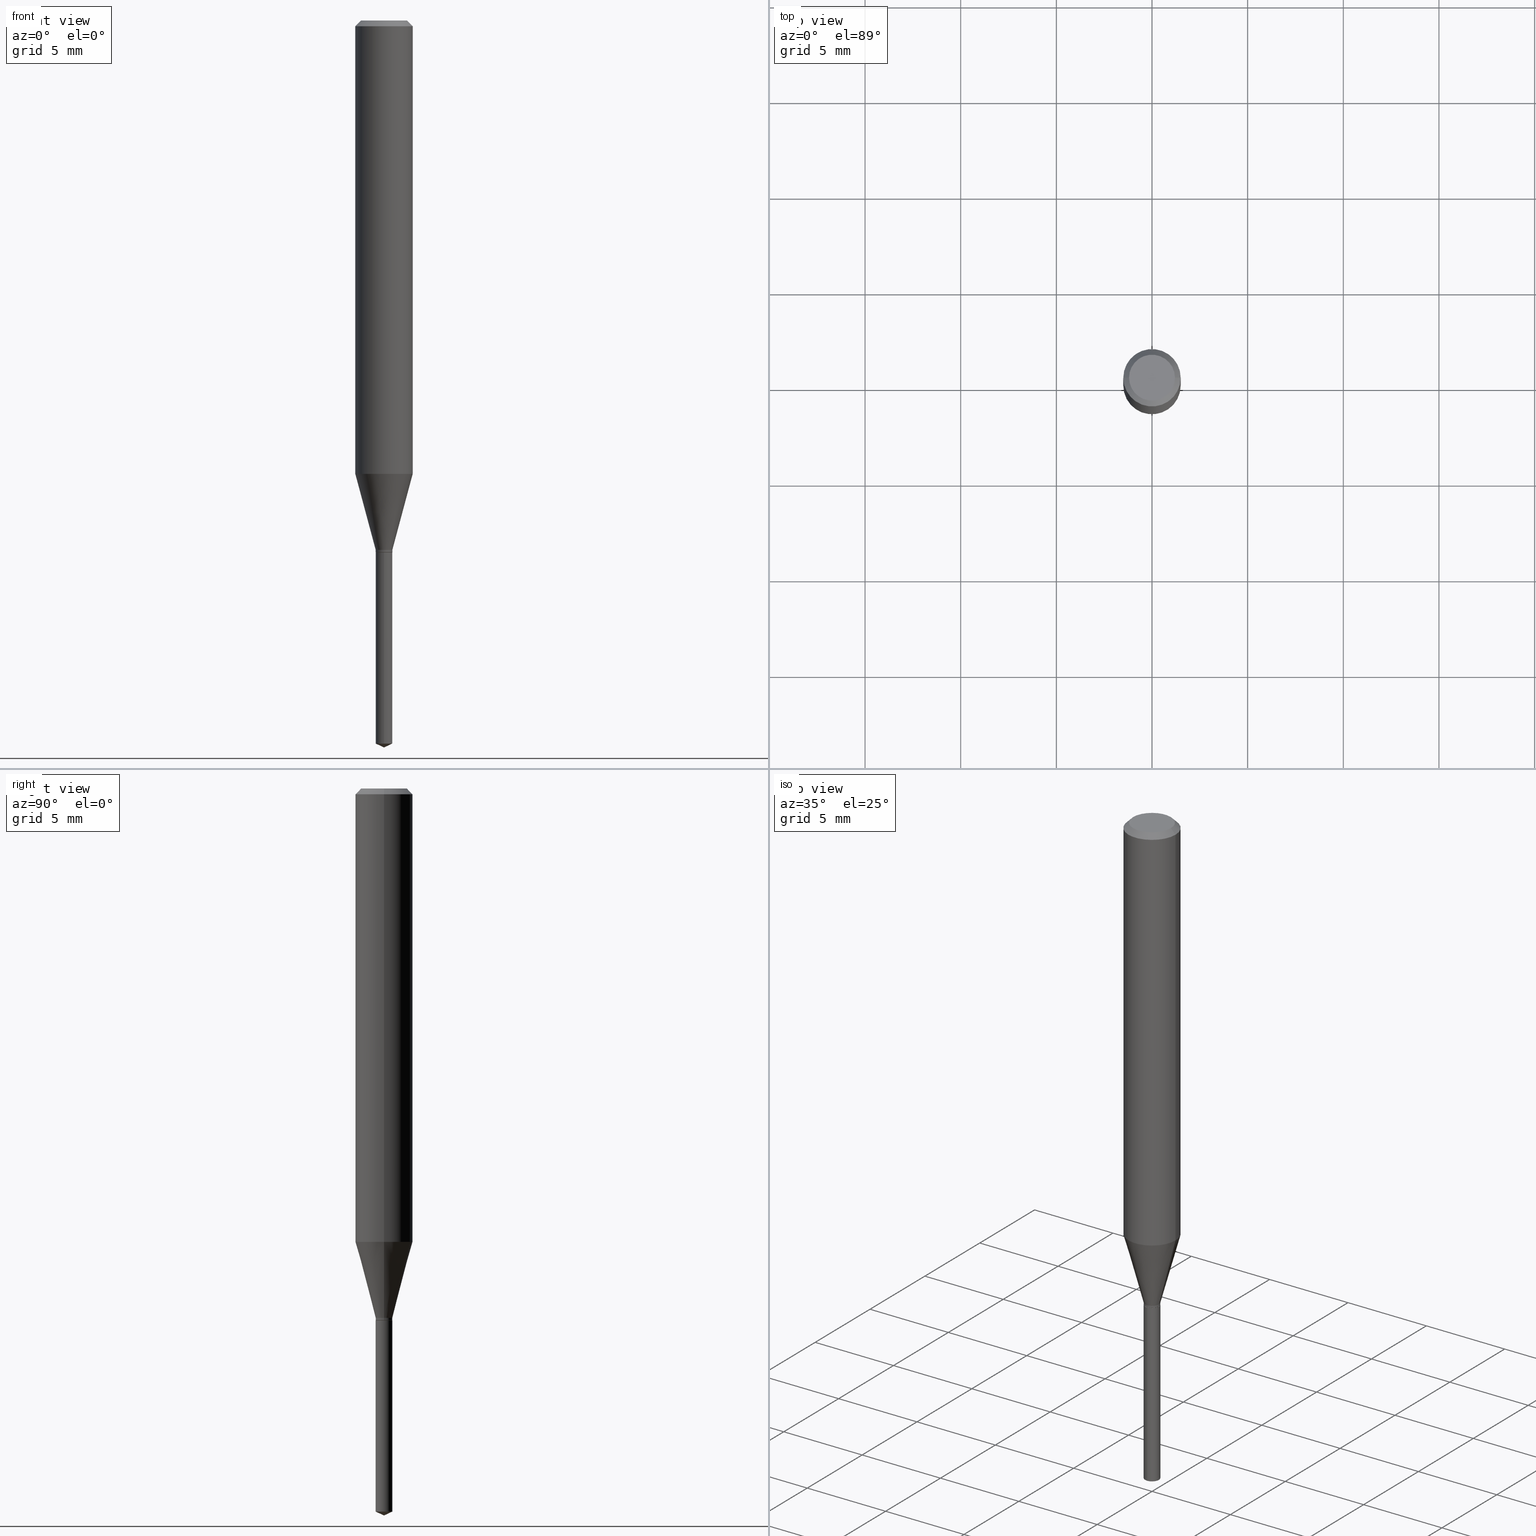
[diagram: canonical four-view strip — front | top / right | iso, engineering-drawing reading convention]
A machine part, canonical four-view strip (front | top / right | iso — engineering-drawing reading convention). The complete STEP part file that produces these views, byte-faithful:
ISO-10303-21;
HEADER;
FILE_DESCRIPTION (( 'STEP AP203' ),
    '1' );
FILE_NAME ('07809.STEP',
    '2024-04-24T03:30:47',
    ( '' ),
    ( '' ),
    'SwSTEP 2.0',
    'SolidWorks 2023',
    '' );
FILE_SCHEMA (( 'CONFIG_CONTROL_DESIGN' ));
ENDSEC;

DATA;
#1 = CARTESIAN_POINT ( 'NONE',  ( 2.676565608369631794E-29, -3.821426325363822773E-15, -1.094499999999999806 ) ) ;
#2 = AXIS2_PLACEMENT_3D ( 'NONE', #216, #62, #364 ) ;
#3 = CALENDAR_DATE ( 2024, 23, 4 ) ;
#4 = DIRECTION ( 'NONE',  ( 1.000000000000000000, -6.982962677686266711E-15, 0.000000000000000000 ) ) ;
#5 = COORDINATED_UNIVERSAL_TIME_OFFSET ( 5, 0, .BEHIND. ) ;
#6 = ORIENTED_EDGE ( 'NONE', *, *, #64, .T. ) ;
#7 = PERSON_AND_ORGANIZATION ( #191, #145 ) ;
#8 = CIRCLE ( 'NONE', #239, 0.04724000000000000421 ) ;
#9 = DIRECTION ( 'NONE',  ( -2.445468806185136597E-29, 3.491481338843145583E-15, 1.000000000000000000 ) ) ;
#10 = VECTOR ( 'NONE', #247, 39.37007874015748143 ) ;
#11 = VERTEX_POINT ( 'NONE', #442 ) ;
#12 = CARTESIAN_POINT ( 'NONE',  ( 0.000000000000000000, 0.000000000000000000, 0.000000000000000000 ) ) ;
#13 = EDGE_CURVE ( 'NONE', #225, #439, #404, .T. ) ;
#14 = ORIENTED_EDGE ( 'NONE', *, *, #52, .F. ) ;
#15 = SHAPE_DEFINITION_REPRESENTATION ( #240, #43 ) ;
#16 = DIRECTION ( 'NONE',  ( 1.000000000000000000, -6.982962677686266711E-15, 4.876176775795935793E-29 ) ) ;
#17 = EDGE_LOOP ( 'NONE', ( #285, #282, #465, #14 ) ) ;
#18 = CARTESIAN_POINT ( 'NONE',  ( 3.639109590007979236E-29, -5.195682445244359530E-15, -1.488102823662641683 ) ) ;
#19 = AXIS2_PLACEMENT_3D ( 'NONE', #329, #406, #371 ) ;
#20 = ORIENTED_EDGE ( 'NONE', *, *, #35, .F. ) ;
#21 = ORIENTED_EDGE ( 'NONE', *, *, #224, .T. ) ;
#22 = ADVANCED_FACE ( 'NONE', ( #375 ), #418, .T. ) ;
#23 = CARTESIAN_POINT ( 'NONE',  ( 1.218580791828936073E-16, 0.01714999999999617525, -1.094499999999999806 ) ) ;
#24 = VECTOR ( 'NONE', #127, 39.37007874015747433 ) ;
#25 = EDGE_CURVE ( 'NONE', #46, #85, #487, .T. ) ;
#26 = DIRECTION ( 'NONE',  ( -2.445468806185136597E-29, 3.491481338843145583E-15, 1.000000000000000000 ) ) ;
#27 = CARTESIAN_POINT ( 'NONE',  ( -9.261968845786000133E-28, 1.322362114038720264E-13, 37.87397874015748300 ) ) ;
#28 = VECTOR ( 'NONE', #197, 39.37007874015748143 ) ;
#29 = AXIS2_PLACEMENT_3D ( 'NONE', #97, #403, #60 ) ;
#30 = CARTESIAN_POINT ( 'NONE',  ( 2.676565608369631794E-29, -3.821426325363822773E-15, -1.094499999999999806 ) ) ;
#31 = DIRECTION ( 'NONE',  ( 2.438088387897960049E-29, -3.491481338843145188E-15, -1.000000000000000000 ) ) ;
#32 = CARTESIAN_POINT ( 'NONE',  ( 2.676565608369631794E-29, -3.821426325363822773E-15, -1.094499999999999806 ) ) ;
#33 = DIRECTION ( 'NONE',  ( -2.445468806185136597E-29, 3.491481338843145583E-15, 1.000000000000000000 ) ) ;
#34 = PERSON_AND_ORGANIZATION ( #191, #145 ) ;
#35 = EDGE_CURVE ( 'NONE', #121, #11, #208, .T. ) ;
#36 = FACE_OUTER_BOUND ( 'NONE', #262, .T. ) ;
#37 = CARTESIAN_POINT ( 'NONE',  ( 2.664093717458087237E-29, -3.803619770535721859E-15, -1.089399999999999924 ) ) ;
#38 = ORIENTED_EDGE ( 'NONE', *, *, #35, .T. ) ;
#39 = DATE_TIME_ROLE ( 'classification_date' ) ;
#40 = CARTESIAN_POINT ( 'NONE',  ( 0.01715000000000000205, -3.939438394616720359E-15, -1.093999999999999861 ) ) ;
#41 = COORDINATED_UNIVERSAL_TIME_OFFSET ( 5, 0, .BEHIND. ) ;
#42 = AXIS2_PLACEMENT_3D ( 'NONE', #30, #288, #134 ) ;
#43 = ADVANCED_BREP_SHAPE_REPRESENTATION ( '07809', ( #71, #419, #139 ), #175 ) ;
#44 = DIRECTION ( 'NONE',  ( 1.000000000000000000, -6.982962677686279332E-15, 0.000000000000000000 ) ) ;
#45 = AXIS2_PLACEMENT_3D ( 'NONE', #292, #374, #448 ) ;
#46 = VERTEX_POINT ( 'NONE', #412 ) ;
#47 = DATE_AND_TIME ( #182, #195 ) ;
#48 = ORIENTED_EDGE ( 'NONE', *, *, #120, .T. ) ;
#49 = DIRECTION ( 'NONE',  ( -2.445470214571802116E-29, 3.491479321953280158E-15, 1.000000000000000000 ) ) ;
#50 = ORIENTED_EDGE ( 'NONE', *, *, #172, .T. ) ;
#51 = CARTESIAN_POINT ( 'NONE',  ( 0.01664999999999999813, -3.937692653947298855E-15, -1.094499999999999806 ) ) ;
#52 = EDGE_CURVE ( 'NONE', #281, #231, #117, .T. ) ;
#53 = ORIENTED_EDGE ( 'NONE', *, *, #238, .T. ) ;
#54 = CARTESIAN_POINT ( 'NONE',  ( 2.676565608369631794E-29, -3.821426325363822773E-15, -1.094499999999999806 ) ) ;
#55 = EDGE_LOOP ( 'NONE', ( #115, #340, #88, #276 ) ) ;
#56 = FACE_OUTER_BOUND ( 'NONE', #192, .T. ) ;
#57 = ADVANCED_FACE ( 'NONE', ( #119 ), #444, .T. ) ;
#58 = CONICAL_SURFACE ( 'NONE', #303, 0.05904999999999999832, 0.7853981633974452814 ) ;
#59 = AXIS2_PLACEMENT_3D ( 'NONE', #451, #141, #101 ) ;
#60 = DIRECTION ( 'NONE',  ( 1.000000000000000000, -6.982962677686266711E-15, 4.876176775795935793E-29 ) ) ;
#61 = DIRECTION ( 'NONE',  ( -1.000000000000000000, 6.982962677686266711E-15, 0.000000000000000000 ) ) ;
#62 = DIRECTION ( 'NONE',  ( -2.445468806185136597E-29, 3.491481338843145583E-15, 1.000000000000000000 ) ) ;
#63 = DIMENSIONAL_EXPONENTS ( 1.000000000000000000, 0.000000000000000000, 0.000000000000000000, 0.000000000000000000, 0.000000000000000000, 0.000000000000000000, 0.000000000000000000 ) ;
#64 = EDGE_CURVE ( 'NONE', #357, #243, #136, .T. ) ;
#65 = AXIS2_PLACEMENT_3D ( 'NONE', #331, #385, #4 ) ;
#66 = AXIS2_PLACEMENT_3D ( 'NONE', #37, #263, #228 ) ;
#67 = LINE ( 'NONE', #362, #490 ) ;
#68 = DIRECTION ( 'NONE',  ( -2.445468806185136597E-29, 3.491481338843145583E-15, 1.000000000000000000 ) ) ;
#69 = ADVANCED_FACE ( 'NONE', ( #484 ), #328, .F. ) ;
#70 = PERSON_AND_ORGANIZATION ( #191, #145 ) ;
#71 = MANIFOLD_SOLID_BREP ( 'Body-Move/Copy2[1]', #236 ) ;
#72 = AXIS2_PLACEMENT_3D ( 'NONE', #74, #380, #223 ) ;
#73 = APPROVAL_DATE_TIME ( #341, #297 ) ;
#74 = CARTESIAN_POINT ( 'NONE',  ( 2.676565608369631794E-29, -3.821426325363822773E-15, -1.094499999999999806 ) ) ;
#75 = PERSON_AND_ORGANIZATION_ROLE ( 'creator' ) ;
#76 = CARTESIAN_POINT ( 'NONE',  ( -0.04724000000000000421, 3.504923541997677355E-16, -3.380025165670481712E-19 ) ) ;
#77 = ADVANCED_FACE ( 'NONE', ( #171 ), #296, .T. ) ;
#78 = EDGE_LOOP ( 'NONE', ( #350, #6, #245, #112 ) ) ;
#79 = COORDINATED_UNIVERSAL_TIME_OFFSET ( 5, 0, .BEHIND. ) ;
#80 = CYLINDRICAL_SURFACE ( 'NONE', #72, 0.01714999999999999858 ) ;
#81 = PRODUCT_RELATED_PRODUCT_CATEGORY ( 'detail', '', ( #156 ) ) ;
#82 = AXIS2_PLACEMENT_3D ( 'NONE', #280, #49, #346 ) ;
#83 = DIRECTION ( 'NONE',  ( -2.445468806185136597E-29, 3.491481338843145583E-15, 1.000000000000000000 ) ) ;
#84 = CARTESIAN_POINT ( 'NONE',  ( 0.01664999999999999813, -3.937692653947298855E-15, -1.094499999999999806 ) ) ;
#85 = VERTEX_POINT ( 'NONE', #372 ) ;
#86 = LINE ( 'NONE', #266, #279 ) ;
#87 = EDGE_LOOP ( 'NONE', ( #152, #284 ) ) ;
#88 = ORIENTED_EDGE ( 'NONE', *, *, #305, .T. ) ;
#89 = VECTOR ( 'NONE', #204, 39.37007874015748143 ) ;
#90 = CONICAL_SURFACE ( 'NONE', #323, 0.01714999999999999858, 0.2617993877991500740 ) ;
#91 = ORIENTED_EDGE ( 'NONE', *, *, #52, .T. ) ;
#92 = EDGE_CURVE ( 'NONE', #128, #231, #379, .T. ) ;
#93 = EDGE_LOOP ( 'NONE', ( #154, #122, #359, #306 ) ) ;
#94 = CONICAL_SURFACE ( 'NONE', #468, 84.42940631927334039, 1.134464013796311344 ) ;
#95 = FACE_OUTER_BOUND ( 'NONE', #87, .T. ) ;
#96 = APPROVAL ( #300, 'UNSPECIFIED' ) ;
#97 = CARTESIAN_POINT ( 'NONE',  ( 0.000000000000000000, 0.000000000000000000, 0.000000000000000000 ) ) ;
#98 = DIRECTION ( 'NONE',  ( -2.445468806185136877E-29, 3.491481338843145188E-15, 1.000000000000000000 ) ) ;
#99 = CARTESIAN_POINT ( 'NONE',  ( 2.675342873966538993E-29, -3.819680584694400481E-15, -1.093999999999999861 ) ) ;
#100 = CC_DESIGN_APPROVAL ( #96, ( #275 ) ) ;
#101 = DIRECTION ( 'NONE',  ( 1.000000000000000000, -6.982962677686267499E-15, 0.000000000000000000 ) ) ;
#102 = EDGE_CURVE ( 'NONE', #439, #11, #395, .T. ) ;
#103 = FACE_OUTER_BOUND ( 'NONE', #159, .T. ) ;
#104 = CARTESIAN_POINT ( 'NONE',  ( 0.05905000000000010935, -3.669990553717989210E-15, -0.9330270711628638747 ) ) ;
#105 = APPROVAL ( #308, 'UNSPECIFIED' ) ;
#106 = PERSON_AND_ORGANIZATION ( #191, #145 ) ;
#107 = CC_DESIGN_APPROVAL ( #297, ( #458 ) ) ;
#108 = DATE_AND_TIME ( #456, #319 ) ;
#109 = AXIS2_PLACEMENT_3D ( 'NONE', #388, #333, #118 ) ;
#110 = CIRCLE ( 'NONE', #66, 0.01714999999999999858 ) ;
#111 = DIRECTION ( 'NONE',  ( -2.445468806185136597E-29, 3.491481338843145583E-15, 1.000000000000000000 ) ) ;
#112 = ORIENTED_EDGE ( 'NONE', *, *, #25, .F. ) ;
#113 = CALENDAR_DATE ( 2024, 23, 4 ) ;
#114 = DIRECTION ( 'NONE',  ( -2.445468806185136877E-29, 3.491481338843145188E-15, 1.000000000000000000 ) ) ;
#115 = ORIENTED_EDGE ( 'NONE', *, *, #190, .F. ) ;
#116 = CARTESIAN_POINT ( 'NONE',  ( -0.01715000000000000205, -3.689792098432204393E-15, -1.093999999999999861 ) ) ;
#117 = LINE ( 'NONE', #84, #270 ) ;
#118 = DIRECTION ( 'NONE',  ( 1.000000000000000000, -6.982962677686277755E-15, 0.000000000000000000 ) ) ;
#119 = FACE_OUTER_BOUND ( 'NONE', #126, .T. ) ;
#120 = EDGE_CURVE ( 'NONE', #121, #233, #302, .T. ) ;
#121 = VERTEX_POINT ( 'NONE', #104 ) ;
#122 = ORIENTED_EDGE ( 'NONE', *, *, #426, .T. ) ;
#123 = VERTEX_POINT ( 'NONE', #254 ) ;
#124 = ADVANCED_FACE ( 'NONE', ( #36 ), #94, .T. ) ;
#125 = AXIS2_PLACEMENT_3D ( 'NONE', #18, #237, #283 ) ;
#126 = EDGE_LOOP ( 'NONE', ( #424, #274, #91, #345 ) ) ;
#127 = DIRECTION ( 'NONE',  ( 0.2588190451025213501, 1.565188264969621968E-15, 0.9659258262890682012 ) ) ;
#128 = VERTEX_POINT ( 'NONE', #116 ) ;
#129 = CARTESIAN_POINT ( 'NONE',  ( -0.01664999999999999813, -3.700471732685654510E-15, -1.094499999999999806 ) ) ;
#130 = AXIS2_PLACEMENT_3D ( 'NONE', #193, #277, #200 ) ;
#131 = VERTEX_POINT ( 'NONE', #466 ) ;
#132 = EDGE_CURVE ( 'NONE', #243, #85, #176, .T. ) ;
#133 = AXIS2_PLACEMENT_3D ( 'NONE', #219, #149, #391 ) ;
#134 = DIRECTION ( 'NONE',  ( 1.000000000000000000, -6.982962677686278543E-15, 0.000000000000000000 ) ) ;
#135 = CARTESIAN_POINT ( 'NONE',  ( 0.01714999999999999858, -3.923377580458041737E-15, -1.089399999999999924 ) ) ;
#136 = LINE ( 'NONE', #367, #10 ) ;
#137 = DIRECTION ( 'NONE',  ( -2.445468806185136877E-29, 3.491481338843145188E-15, 1.000000000000000000 ) ) ;
#138 = EDGE_CURVE ( 'NONE', #231, #433, #86, .T. ) ;
#139 = AXIS2_PLACEMENT_3D ( 'NONE', #12, #189, #260 ) ;
#140 = LENGTH_MEASURE_WITH_UNIT ( LENGTH_MEASURE( 0.02539999999999999897 ), #450 );
#141 = DIRECTION ( 'NONE',  ( -2.445468806185136597E-29, 3.491481338843145583E-15, 1.000000000000000000 ) ) ;
#142 = FACE_OUTER_BOUND ( 'NONE', #78, .T. ) ;
#143 = CARTESIAN_POINT ( 'NONE',  ( 0.000000000000000000, 0.000000000000000000, 0.000000000000000000 ) ) ;
#144 = ORIENTED_EDGE ( 'NONE', *, *, #64, .F. ) ;
#145 = ORGANIZATION ( 'UNSPECIFIED', 'UNSPECIFIED', '' ) ;
#146 = ADVANCED_FACE ( 'NONE', ( #422 ), #344, .T. ) ;
#147 = APPROVAL_STATUS ( 'not_yet_approved' ) ;
#148 = AXIS2_PLACEMENT_3D ( 'NONE', #429, #313, #168 ) ;
#149 = DIRECTION ( 'NONE',  ( -2.445470214571802116E-29, 3.491479321953280158E-15, 1.000000000000000000 ) ) ;
#150 = ORIENTED_EDGE ( 'NONE', *, *, #426, .F. ) ;
#151 = PERSON_AND_ORGANIZATION_ROLE ( 'design_supplier' ) ;
#152 = ORIENTED_EDGE ( 'NONE', *, *, #398, .F. ) ;
#153 = CYLINDRICAL_SURFACE ( 'NONE', #294, 0.01715000000000000205 ) ;
#154 = ORIENTED_EDGE ( 'NONE', *, *, #363, .F. ) ;
#155 = CARTESIAN_POINT ( 'NONE',  ( 2.676565608369631794E-29, -3.821426325363822773E-15, -1.094499999999999806 ) ) ;
#156 = PRODUCT ( '07809', '07809', '', ( #177 ) ) ;
#157 = EDGE_LOOP ( 'NONE', ( #150, #321, #427, #352 ) ) ;
#158 = CARTESIAN_POINT ( 'NONE',  ( -0.01714999999999999858, -3.689792098432204393E-15, -1.089399999999999924 ) ) ;
#159 = EDGE_LOOP ( 'NONE', ( #48, #478, #430, #20 ) ) ;
#160 = CARTESIAN_POINT ( 'NONE',  ( 0.01714999999999999858, -3.923377580458041737E-15, -1.089399999999999924 ) ) ;
#161 = CIRCLE ( 'NONE', #19, 0.04724000000000000421 ) ;
#162 = ORIENTED_EDGE ( 'NONE', *, *, #132, .F. ) ;
#163 = LINE ( 'NONE', #160, #24 ) ;
#164 = CARTESIAN_POINT ( 'NONE',  ( -0.05904999999999999832, -1.229865015639836319E-15, -0.01181000000000006871 ) ) ;
#165 = EDGE_CURVE ( 'NONE', #348, #433, #110, .T. ) ;
#166 = DIRECTION ( 'NONE',  ( 1.000000000000000000, -6.982962677686265922E-15, 4.876176775795935793E-29 ) ) ;
#167 = CONICAL_SURFACE ( 'NONE', #347, 0.01664999999999999813, 0.7853981633974141952 ) ;
#168 = DIRECTION ( 'NONE',  ( 1.000000000000000000, -6.982962677686278543E-15, 0.000000000000000000 ) ) ;
#169 = LOCAL_TIME ( 23, 30, 47.00000000000000000, #213 ) ;
#170 = CARTESIAN_POINT ( 'NONE',  ( 3.658664905062460986E-29, -5.223606628546217219E-15, -1.496099999999999985 ) ) ;
#171 = FACE_OUTER_BOUND ( 'NONE', #229, .T. ) ;
#172 = EDGE_CURVE ( 'NONE', #231, #128, #339, .T. ) ;
#173 = DIRECTION ( 'NONE',  ( 2.445468806185136597E-29, -3.491481338843145583E-15, -1.000000000000000000 ) ) ;
#174 = CC_DESIGN_PERSON_AND_ORGANIZATION_ASSIGNMENT ( #106, #75, ( #312 ) ) ;
#175 =( GEOMETRIC_REPRESENTATION_CONTEXT ( 3 ) GLOBAL_UNCERTAINTY_ASSIGNED_CONTEXT ( ( #467 ) ) GLOBAL_UNIT_ASSIGNED_CONTEXT ( ( #253, #452, #479 ) ) REPRESENTATION_CONTEXT ( 'NONE', 'WORKASPACE' ) );
#176 = CIRCLE ( 'NONE', #133, 0.01714999999999999858 ) ;
#177 = MECHANICAL_CONTEXT ( 'NONE', #318, 'mechanical' ) ;
#178 = CARTESIAN_POINT ( 'NONE',  ( -0.01714999999999999858, -3.681761691352864687E-15, -1.089399999999999924 ) ) ;
#179 = FACE_OUTER_BOUND ( 'NONE', #460, .T. ) ;
#180 = ADVANCED_FACE ( 'NONE', ( #230 ), #153, .T. ) ;
#181 = ORIENTED_EDGE ( 'NONE', *, *, #246, .T. ) ;
#182 = CALENDAR_DATE ( 2024, 23, 4 ) ;
#183 = CARTESIAN_POINT ( 'NONE',  ( -0.05905000000000010935, -2.838071122134274797E-15, -0.9330270711628638747 ) ) ;
#184 = ORIENTED_EDGE ( 'NONE', *, *, #477, .F. ) ;
#185 = AXIS2_PLACEMENT_3D ( 'NONE', #1, #489, #166 ) ;
#186 = PERSON_AND_ORGANIZATION_ROLE ( 'classification_officer' ) ;
#187 = VECTOR ( 'NONE', #137, 39.37007874015748143 ) ;
#188 = ORIENTED_EDGE ( 'NONE', *, *, #434, .T. ) ;
#189 = DIRECTION ( 'NONE',  ( 0.000000000000000000, 0.000000000000000000, 1.000000000000000000 ) ) ;
#190 = EDGE_CURVE ( 'NONE', #348, #233, #271, .T. ) ;
#191 = PERSON ( 'UNSPECIFIED', 'UNSPECIFIED', 'UNSPECIFIED', ('UNSPECIFIED'), ('UNSPECIFIED'), ('UNSPECIFIED') ) ;
#192 = EDGE_LOOP ( 'NONE', ( #144, #181, #475, #162 ) ) ;
#193 = CARTESIAN_POINT ( 'NONE',  ( 3.639109590007979236E-29, -5.195682445244359530E-15, -1.488102823662641683 ) ) ;
#194 = AXIS2_PLACEMENT_3D ( 'NONE', #32, #206, #210 ) ;
#195 = LOCAL_TIME ( 23, 30, 47.00000000000000000, #41 ) ;
#196 = ORIENTED_EDGE ( 'NONE', *, *, #238, .F. ) ;
#197 = DIRECTION ( 'NONE',  ( -0.7071067811865453523, 2.468850131082234184E-15, -0.7071067811865496822 ) ) ;
#198 = ORIENTED_EDGE ( 'NONE', *, *, #305, .F. ) ;
#199 = CARTESIAN_POINT ( 'NONE',  ( 2.281688597855063400E-29, -3.257646607600614684E-15, -0.9330270711628638747 ) ) ;
#200 = DIRECTION ( 'NONE',  ( -6.982962677686266711E-15, -1.000000000000000000, 0.000000000000000000 ) ) ;
#201 = DIRECTION ( 'NONE',  ( -6.982962677686266711E-15, -1.000000000000000000, 0.000000000000000000 ) ) ;
#202 = VECTOR ( 'NONE', #293, 39.37007874015748143 ) ;
#203 = EDGE_CURVE ( 'NONE', #11, #439, #396, .T. ) ;
#204 = DIRECTION ( 'NONE',  ( -2.445468806185136877E-29, 3.491481338843145188E-15, 1.000000000000000000 ) ) ;
#205 = ORIENTED_EDGE ( 'NONE', *, *, #434, .F. ) ;
#206 = DIRECTION ( 'NONE',  ( -2.445468806185136597E-29, 3.491481338843145583E-15, 1.000000000000000000 ) ) ;
#207 = DIRECTION ( 'NONE',  ( 0.7071067811865453523, -7.319954787623248157E-15, -0.7071067811865496822 ) ) ;
#208 = LINE ( 'NONE', #370, #187 ) ;
#209 = ADVANCED_FACE ( 'NONE', ( #142 ), #80, .T. ) ;
#210 = DIRECTION ( 'NONE',  ( 1.000000000000000000, -6.982962677686278543E-15, 0.000000000000000000 ) ) ;
#211 = DIRECTION ( 'NONE',  ( 1.000000000000000000, -6.982962677686266711E-15, 0.000000000000000000 ) ) ;
#212 = CARTESIAN_POINT ( 'NONE',  ( -0.05905000000000005383, 4.195754854663395423E-16, -2.904631170795524694E-30 ) ) ;
#213 = COORDINATED_UNIVERSAL_TIME_OFFSET ( 5, 0, .BEHIND. ) ;
#214 = DIRECTION ( 'NONE',  ( -1.000000000000000000, 6.982962677686265922E-15, -4.876176775795935793E-29 ) ) ;
#215 = AXIS2_PLACEMENT_3D ( 'NONE', #155, #400, #201 ) ;
#216 = CARTESIAN_POINT ( 'NONE',  ( 2.664093717458087237E-29, -3.803619770535721859E-15, -1.089399999999999924 ) ) ;
#217 = AXIS2_PLACEMENT_3D ( 'NONE', #99, #33, #378 ) ;
#218 = ADVANCED_FACE ( 'NONE', ( #179 ), #90, .T. ) ;
#219 = CARTESIAN_POINT ( 'NONE',  ( 2.676565608369631794E-29, -3.821426325363822773E-15, -1.094499999999999806 ) ) ;
#220 = PERSON_AND_ORGANIZATION ( #191, #145 ) ;
#221 = CARTESIAN_POINT ( 'NONE',  ( 8.265746106709734507E-48, -1.180129479067563789E-33, -3.380025165646692144E-19 ) ) ;
#222 = PERSON_AND_ORGANIZATION ( #191, #145 ) ;
#223 = DIRECTION ( 'NONE',  ( -6.982962677686266711E-15, -1.000000000000000000, 0.000000000000000000 ) ) ;
#224 = EDGE_CURVE ( 'NONE', #225, #131, #8, .T. ) ;
#225 = VERTEX_POINT ( 'NONE', #76 ) ;
#226 = LOCAL_TIME ( 23, 30, 47.00000000000000000, #79 ) ;
#227 = AXIS2_PLACEMENT_3D ( 'NONE', #411, #68, #211 ) ;
#228 = DIRECTION ( 'NONE',  ( 1.000000000000000000, -6.982962677686279332E-15, 0.000000000000000000 ) ) ;
#229 = EDGE_LOOP ( 'NONE', ( #267, #438, #38, #272 ) ) ;
#230 = FACE_OUTER_BOUND ( 'NONE', #480, .T. ) ;
#231 = VERTEX_POINT ( 'NONE', #40 ) ;
#232 = FACE_OUTER_BOUND ( 'NONE', #17, .T. ) ;
#233 = VERTEX_POINT ( 'NONE', #183 ) ;
#234 = CIRCLE ( 'NONE', #82, 0.01714999999999999858 ) ;
#235 = LOCAL_TIME ( 23, 30, 47.00000000000000000, #415 ) ;
#236 = CLOSED_SHELL ( 'NONE', ( #209, #390, #124, #290, #355 ) ) ;
#237 = DIRECTION ( 'NONE',  ( -2.445470214571802116E-29, 3.491479321953280158E-15, 1.000000000000000000 ) ) ;
#238 = EDGE_CURVE ( 'NONE', #433, #348, #437, .T. ) ;
#239 = AXIS2_PLACEMENT_3D ( 'NONE', #221, #261, #462 ) ;
#240 = PRODUCT_DEFINITION_SHAPE ( 'NONE', 'NONE',  #275 ) ;
#241 = VERTEX_POINT ( 'NONE', #129 ) ;
#242 = CARTESIAN_POINT ( 'NONE',  ( -0.01664999999999999813, -3.703120959859765711E-15, -1.094499999999999806 ) ) ;
#243 = VERTEX_POINT ( 'NONE', #23 ) ;
#244 = DIRECTION ( 'NONE',  ( 1.000000000000000000, -6.982962677686278543E-15, 0.000000000000000000 ) ) ;
#245 = ORIENTED_EDGE ( 'NONE', *, *, #249, .F. ) ;
#246 = EDGE_CURVE ( 'NONE', #357, #46, #338, .T. ) ;
#247 = DIRECTION ( 'NONE',  ( -2.445470214571802396E-29, 3.491479321953280158E-15, 1.000000000000000000 ) ) ;
#248 = CARTESIAN_POINT ( 'NONE',  ( 0.05904999999999999832, -4.463468013801466955E-16, -0.01181000000000006871 ) ) ;
#249 = EDGE_CURVE ( 'NONE', #85, #243, #234, .T. ) ;
#250 = CARTESIAN_POINT ( 'NONE',  ( -1.197578099222926869E-16, -0.01715000000000382191, -1.094499999999999806 ) ) ;
#251 = DIRECTION ( 'NONE',  ( 6.982962677686265922E-15, 1.000000000000000000, -3.491479321953280158E-15 ) ) ;
#252 = CONICAL_SURFACE ( 'NONE', #368, 0.05904999999999999832, 0.7853981633974452814 ) ;
#253 =( CONVERSION_BASED_UNIT ( 'INCH', #140 ) LENGTH_UNIT ( ) NAMED_UNIT ( #63 ) );
#254 = CARTESIAN_POINT ( 'NONE',  ( 3.658667988020872822E-29, -5.223602213574301462E-15, -1.496099999999999985 ) ) ;
#255 = DATE_AND_TIME ( #298, #169 ) ;
#256 = EDGE_CURVE ( 'NONE', #241, #128, #435, .T. ) ;
#257 = SECURITY_CLASSIFICATION_LEVEL ( 'unclassified' ) ;
#258 = DIRECTION ( 'NONE',  ( -2.445470214571802116E-29, 3.491479321953280158E-15, 1.000000000000000000 ) ) ;
#259 = AXIS2_PLACEMENT_3D ( 'NONE', #27, #483, #446 ) ;
#260 = DIRECTION ( 'NONE',  ( 1.000000000000000000, 0.000000000000000000, 0.000000000000000000 ) ) ;
#261 = DIRECTION ( 'NONE',  ( -2.445468806185136597E-29, 3.491481338843145583E-15, 1.000000000000000000 ) ) ;
#262 = EDGE_LOOP ( 'NONE', ( #470, #188, #432 ) ) ;
#263 = DIRECTION ( 'NONE',  ( -2.445468806185136597E-29, 3.491481338843145583E-15, 1.000000000000000000 ) ) ;
#264 = ADVANCED_FACE ( 'NONE', ( #232 ), #167, .T. ) ;
#265 = ORIENTED_EDGE ( 'NONE', *, *, #314, .F. ) ;
#266 = CARTESIAN_POINT ( 'NONE',  ( 0.01715000000000000205, -1.197578099223194836E-16, 8.362643170490031118E-31 ) ) ;
#267 = ORIENTED_EDGE ( 'NONE', *, *, #443, .F. ) ;
#268 = VECTOR ( 'NONE', #356, 39.37007874015748854 ) ;
#269 = CC_DESIGN_SECURITY_CLASSIFICATION ( #458, ( #312 ) ) ;
#270 = VECTOR ( 'NONE', #310, 39.37007874015748854 ) ;
#271 = LINE ( 'NONE', #178, #278 ) ;
#272 = ORIENTED_EDGE ( 'NONE', *, *, #102, .F. ) ;
#273 = CARTESIAN_POINT ( 'NONE',  ( 3.658668015054778287E-29, -5.223602213574301462E-15, -1.496099999999999985 ) ) ;
#274 = ORIENTED_EDGE ( 'NONE', *, *, #413, .T. ) ;
#275 = PRODUCT_DEFINITION ( 'UNKNOWN', '', #312, #369 ) ;
#276 = ORIENTED_EDGE ( 'NONE', *, *, #320, .F. ) ;
#277 = DIRECTION ( 'NONE',  ( -2.445470214571802116E-29, 3.491479321953280158E-15, 1.000000000000000000 ) ) ;
#278 = VECTOR ( 'NONE', #428, 39.37007874015747433 ) ;
#279 = VECTOR ( 'NONE', #114, 39.37007874015748143 ) ;
#280 = CARTESIAN_POINT ( 'NONE',  ( 2.676565608369631794E-29, -3.821426325363822773E-15, -1.094499999999999806 ) ) ;
#281 = VERTEX_POINT ( 'NONE', #51 ) ;
#282 = ORIENTED_EDGE ( 'NONE', *, *, #256, .T. ) ;
#283 = DIRECTION ( 'NONE',  ( -6.982962677686266711E-15, -1.000000000000000000, 0.000000000000000000 ) ) ;
#284 = ORIENTED_EDGE ( 'NONE', *, *, #413, .F. ) ;
#285 = ORIENTED_EDGE ( 'NONE', *, *, #398, .T. ) ;
#286 = DIRECTION ( 'NONE',  ( -2.445468806185136597E-29, 3.491481338843145583E-15, 1.000000000000000000 ) ) ;
#287 = CC_DESIGN_PERSON_AND_ORGANIZATION_ASSIGNMENT ( #7, #151, ( #312 ) ) ;
#288 = DIRECTION ( 'NONE',  ( -2.445468806185136597E-29, 3.491481338843145583E-15, 1.000000000000000000 ) ) ;
#289 = CYLINDRICAL_SURFACE ( 'NONE', #29, 0.05905000000000005383 ) ;
#290 = ADVANCED_FACE ( 'NONE', ( #56 ), #360, .T. ) ;
#291 = FACE_OUTER_BOUND ( 'NONE', #157, .T. ) ;
#292 = CARTESIAN_POINT ( 'NONE',  ( 0.000000000000000000, 0.000000000000000000, 0.000000000000000000 ) ) ;
#293 = DIRECTION ( 'NONE',  ( -6.328713451373360701E-15, -0.9063077870366472721, 0.4226182617407052144 ) ) ;
#294 = AXIS2_PLACEMENT_3D ( 'NONE', #143, #309, #454 ) ;
#295 = CARTESIAN_POINT ( 'NONE',  ( 2.888098660104663328E-31, -4.123439461173779030E-17, -0.01181000000000006871 ) ) ;
#296 = CYLINDRICAL_SURFACE ( 'NONE', #45, 0.05905000000000005383 ) ;
#297 = APPROVAL ( #147, 'UNSPECIFIED' ) ;
#298 = CALENDAR_DATE ( 2024, 23, 4 ) ;
#299 = DIRECTION ( 'NONE',  ( -6.982962677686266711E-15, -1.000000000000000000, 3.520397390770495680E-15 ) ) ;
#300 = APPROVAL_STATUS ( 'not_yet_approved' ) ;
#301 = VECTOR ( 'NONE', #207, 39.37007874015748143 ) ;
#302 = CIRCLE ( 'NONE', #59, 0.05905000000000010935 ) ;
#303 = AXIS2_PLACEMENT_3D ( 'NONE', #486, #173, #61 ) ;
#304 = APPROVAL_ROLE ( '' ) ;
#305 = EDGE_CURVE ( 'NONE', #433, #121, #163, .T. ) ;
#306 = ORIENTED_EDGE ( 'NONE', *, *, #13, .F. ) ;
#307 = ORIENTED_EDGE ( 'NONE', *, *, #334, .T. ) ;
#308 = APPROVAL_STATUS ( 'not_yet_approved' ) ;
#309 = DIRECTION ( 'NONE',  ( -2.445468806185136597E-29, 3.491481338843145583E-15, 1.000000000000000000 ) ) ;
#310 = DIRECTION ( 'NONE',  ( 0.7071067811865232589, -2.468850131082003836E-15, 0.7071067811865715536 ) ) ;
#311 = ORIENTED_EDGE ( 'NONE', *, *, #120, .F. ) ;
#312 = PRODUCT_DEFINITION_FORMATION_WITH_SPECIFIED_SOURCE ( 'ANY', '', #156, .NOT_KNOWN. ) ;
#313 = DIRECTION ( 'NONE',  ( -2.445468806185136597E-29, 3.491481338843145583E-15, 1.000000000000000000 ) ) ;
#314 = EDGE_CURVE ( 'NONE', #46, #357, #409, .T. ) ;
#315 = ORIENTED_EDGE ( 'NONE', *, *, #249, .T. ) ;
#316 = FACE_OUTER_BOUND ( 'NONE', #469, .T. ) ;
#317 = EDGE_LOOP ( 'NONE', ( #184, #342, #361, #392 ) ) ;
#318 = APPLICATION_CONTEXT ( 'configuration controlled 3d designs of mechanical parts and assemblies' ) ;
#319 = LOCAL_TIME ( 23, 30, 47.00000000000000000, #5 ) ;
#320 = EDGE_CURVE ( 'NONE', #233, #121, #358, .T. ) ;
#321 = ORIENTED_EDGE ( 'NONE', *, *, #224, .F. ) ;
#322 = CARTESIAN_POINT ( 'NONE',  ( -9.261968845786000133E-28, 1.322362114038720264E-13, 37.87397874015748300 ) ) ;
#323 = AXIS2_PLACEMENT_3D ( 'NONE', #459, #111, #44 ) ;
#324 = CARTESIAN_POINT ( 'NONE',  ( 1.218580791828935333E-16, 0.01714999999999479788, -1.488102823662641683 ) ) ;
#325 = APPROVAL_PERSON_ORGANIZATION ( #336, #297, #304 ) ;
#326 = LINE ( 'NONE', #212, #89 ) ;
#327 = PLANE ( 'NONE',  #185 ) ;
#328 = PLANE ( 'NONE',  #402 ) ;
#329 = CARTESIAN_POINT ( 'NONE',  ( 8.265746106709734507E-48, -1.180129479067563789E-33, -3.380025165646692144E-19 ) ) ;
#330 = PERSON_AND_ORGANIZATION_ROLE ( 'design_owner' ) ;
#331 = CARTESIAN_POINT ( 'NONE',  ( 2.888098660104663328E-31, -4.123439461173779030E-17, -0.01181000000000006871 ) ) ;
#332 = APPLICATION_PROTOCOL_DEFINITION ( 'international standard', 'config_control_design', 1994, #318 ) ;
#333 = DIRECTION ( 'NONE',  ( -2.445468806185136597E-29, 3.491481338843145583E-15, 1.000000000000000000 ) ) ;
#334 = EDGE_CURVE ( 'NONE', #123, #357, #351, .T. ) ;
#335 = EDGE_LOOP ( 'NONE', ( #205, #307, #265 ) ) ;
#336 = PERSON_AND_ORGANIZATION ( #191, #145 ) ;
#337 = CARTESIAN_POINT ( 'NONE',  ( 2.664093717458087237E-29, -3.803619770535721859E-15, -1.089399999999999924 ) ) ;
#338 = CIRCLE ( 'NONE', #130, 0.01714999999999999858 ) ;
#339 = CIRCLE ( 'NONE', #109, 0.01715000000000000205 ) ;
#340 = ORIENTED_EDGE ( 'NONE', *, *, #165, .T. ) ;
#341 = DATE_AND_TIME ( #113, #235 ) ;
#342 = ORIENTED_EDGE ( 'NONE', *, *, #92, .T. ) ;
#343 = APPROVAL_ROLE ( '' ) ;
#344 = CYLINDRICAL_SURFACE ( 'NONE', #482, 0.01715000000000000205 ) ;
#345 = ORIENTED_EDGE ( 'NONE', *, *, #92, .F. ) ;
#346 = DIRECTION ( 'NONE',  ( -6.982962677686266711E-15, -1.000000000000000000, 0.000000000000000000 ) ) ;
#347 = AXIS2_PLACEMENT_3D ( 'NONE', #473, #26, #244 ) ;
#348 = VERTEX_POINT ( 'NONE', #158 ) ;
#349 = VECTOR ( 'NONE', #408, 39.37007874015748143 ) ;
#350 = ORIENTED_EDGE ( 'NONE', *, *, #314, .T. ) ;
#351 = LINE ( 'NONE', #273, #425 ) ;
#352 = ORIENTED_EDGE ( 'NONE', *, *, #102, .T. ) ;
#353 = ORIENTED_EDGE ( 'NONE', *, *, #138, .F. ) ;
#354 = DIRECTION ( 'NONE',  ( 2.445470214571801836E-29, -3.491479321953280158E-15, -1.000000000000000000 ) ) ;
#355 = ADVANCED_FACE ( 'NONE', ( #316 ), #397, .F. ) ;
#356 = DIRECTION ( 'NONE',  ( -0.7071067811865232589, 7.493145998870265808E-15, 0.7071067811865715536 ) ) ;
#357 = VERTEX_POINT ( 'NONE', #324 ) ;
#358 = CIRCLE ( 'NONE', #386, 0.05905000000000010935 ) ;
#359 = ORIENTED_EDGE ( 'NONE', *, *, #203, .T. ) ;
#360 = CYLINDRICAL_SURFACE ( 'NONE', #215, 0.01714999999999999858 ) ;
#361 = ORIENTED_EDGE ( 'NONE', *, *, #138, .T. ) ;
#362 = CARTESIAN_POINT ( 'NONE',  ( -0.01715000000000000205, 1.218580791828571964E-16, -8.435973679787163407E-31 ) ) ;
#363 = EDGE_CURVE ( 'NONE', #131, #225, #161, .T. ) ;
#364 = DIRECTION ( 'NONE',  ( 1.000000000000000000, -6.982962677686279332E-15, 0.000000000000000000 ) ) ;
#365 = FACE_OUTER_BOUND ( 'NONE', #335, .T. ) ;
#366 = CLOSED_SHELL ( 'NONE', ( #264, #464, #421, #218, #180, #146, #22, #77, #455, #69, #485, #57 ) ) ;
#367 = CARTESIAN_POINT ( 'NONE',  ( 1.218580791828839191E-16, 0.01714999999999617525, -1.094499999999999806 ) ) ;
#368 = AXIS2_PLACEMENT_3D ( 'NONE', #295, #410, #447 ) ;
#369 = DESIGN_CONTEXT ( 'detailed design', #401, 'design' ) ;
#370 = CARTESIAN_POINT ( 'NONE',  ( 0.05905000000000005383, -4.123439461173744271E-16, 2.879382386107502672E-30 ) ) ;
#371 = DIRECTION ( 'NONE',  ( 1.000000000000000000, -6.982962677686266711E-15, 4.876185090822587894E-29 ) ) ;
#372 = CARTESIAN_POINT ( 'NONE',  ( -1.197578099222926869E-16, -0.01715000000000382191, -1.094499999999999806 ) ) ;
#373 = LINE ( 'NONE', #248, #301 ) ;
#374 = DIRECTION ( 'NONE',  ( -2.445468806185136597E-29, 3.491481338843145583E-15, 1.000000000000000000 ) ) ;
#375 = FACE_OUTER_BOUND ( 'NONE', #55, .T. ) ;
#376 = CC_DESIGN_DATE_AND_TIME_ASSIGNMENT ( #414, #461, ( #275 ) ) ;
#377 = APPROVAL_ROLE ( '' ) ;
#378 = DIRECTION ( 'NONE',  ( 1.000000000000000000, -6.982962677686277755E-15, 0.000000000000000000 ) ) ;
#379 = CIRCLE ( 'NONE', #217, 0.01715000000000000205 ) ;
#380 = DIRECTION ( 'NONE',  ( -2.445470214571802116E-29, 3.491479321953280158E-15, 1.000000000000000000 ) ) ;
#381 = PERSON_AND_ORGANIZATION ( #191, #145 ) ;
#382 = CC_DESIGN_PERSON_AND_ORGANIZATION_ASSIGNMENT ( #34, #387, ( #275 ) ) ;
#383 = EDGE_LOOP ( 'NONE', ( #21, #440 ) ) ;
#384 = APPLICATION_PROTOCOL_DEFINITION ( 'international standard', 'config_control_design', 1994, #401 ) ;
#385 = DIRECTION ( 'NONE',  ( -2.445468806185136597E-29, 3.491481338843145583E-15, 1.000000000000000000 ) ) ;
#386 = AXIS2_PLACEMENT_3D ( 'NONE', #199, #286, #476 ) ;
#387 = PERSON_AND_ORGANIZATION_ROLE ( 'creator' ) ;
#388 = CARTESIAN_POINT ( 'NONE',  ( 2.675342873966538993E-29, -3.819680584694400481E-15, -1.093999999999999861 ) ) ;
#389 = ORIENTED_EDGE ( 'NONE', *, *, #477, .T. ) ;
#390 = ADVANCED_FACE ( 'NONE', ( #365 ), #457, .T. ) ;
#391 = DIRECTION ( 'NONE',  ( -6.982962677686266711E-15, -1.000000000000000000, 0.000000000000000000 ) ) ;
#392 = ORIENTED_EDGE ( 'NONE', *, *, #165, .F. ) ;
#393 = AXIS2_PLACEMENT_3D ( 'NONE', #337, #9, #441 ) ;
#394 = APPROVAL_PERSON_ORGANIZATION ( #220, #105, #343 ) ;
#395 = CIRCLE ( 'NONE', #227, 0.05904999999999999832 ) ;
#396 = CIRCLE ( 'NONE', #65, 0.05904999999999999832 ) ;
#397 = PLANE ( 'NONE',  #436 ) ;
#398 = EDGE_CURVE ( 'NONE', #281, #241, #449, .T. ) ;
#399 = CC_DESIGN_DATE_AND_TIME_ASSIGNMENT ( #47, #39, ( #458 ) ) ;
#400 = DIRECTION ( 'NONE',  ( -2.445470214571802116E-29, 3.491479321953280158E-15, 1.000000000000000000 ) ) ;
#401 = APPLICATION_CONTEXT ( 'configuration controlled 3d designs of mechanical parts and assemblies' ) ;
#402 = AXIS2_PLACEMENT_3D ( 'NONE', #407, #31, #214 ) ;
#403 = DIRECTION ( 'NONE',  ( -2.445468806185136597E-29, 3.491481338843145583E-15, 1.000000000000000000 ) ) ;
#404 = LINE ( 'NONE', #471, #28 ) ;
#405 = LINE ( 'NONE', #170, #202 ) ;
#406 = DIRECTION ( 'NONE',  ( -2.445468806185136597E-29, 3.491481338843145583E-15, 1.000000000000000000 ) ) ;
#407 = CARTESIAN_POINT ( 'NONE',  ( 4.132873053354867254E-48, -5.900647395337818946E-34, -1.690012582823346072E-19 ) ) ;
#408 = DIRECTION ( 'NONE',  ( -2.445470214571802396E-29, 3.491479321953280158E-15, 1.000000000000000000 ) ) ;
#409 = CIRCLE ( 'NONE', #125, 0.01714999999999999858 ) ;
#410 = DIRECTION ( 'NONE',  ( 2.445468806185136597E-29, -3.491481338843145583E-15, -1.000000000000000000 ) ) ;
#411 = CARTESIAN_POINT ( 'NONE',  ( 2.888098660104663328E-31, -4.123439461173779030E-17, -0.01181000000000006871 ) ) ;
#412 = CARTESIAN_POINT ( 'NONE',  ( -1.197578099222830234E-16, -0.01715000000000518887, -1.488102823662641683 ) ) ;
#413 = EDGE_CURVE ( 'NONE', #241, #281, #481, .T. ) ;
#414 = DATE_AND_TIME ( #3, #226 ) ;
#415 = COORDINATED_UNIVERSAL_TIME_OFFSET ( 5, 0, .BEHIND. ) ;
#416 = CC_DESIGN_APPROVAL ( #105, ( #312 ) ) ;
#417 = CARTESIAN_POINT ( 'NONE',  ( 0.000000000000000000, 0.000000000000000000, 0.000000000000000000 ) ) ;
#418 = CONICAL_SURFACE ( 'NONE', #2, 0.01714999999999999858, 0.2617993877991500740 ) ;
#419 = MANIFOLD_SOLID_BREP ( 'Body-Move/Copy2[2]', #366 ) ;
#420 = APPROVAL_DATE_TIME ( #108, #96 ) ;
#421 = ADVANCED_FACE ( 'NONE', ( #103 ), #289, .T. ) ;
#422 = FACE_OUTER_BOUND ( 'NONE', #317, .T. ) ;
#423 = ORIENTED_EDGE ( 'NONE', *, *, #132, .T. ) ;
#424 = ORIENTED_EDGE ( 'NONE', *, *, #256, .F. ) ;
#425 = VECTOR ( 'NONE', #431, 39.37007874015748143 ) ;
#426 = EDGE_CURVE ( 'NONE', #131, #11, #373, .T. ) ;
#427 = ORIENTED_EDGE ( 'NONE', *, *, #13, .T. ) ;
#428 = DIRECTION ( 'NONE',  ( -0.2588190451025213501, 5.211531920934551042E-15, 0.9659258262890682012 ) ) ;
#429 = CARTESIAN_POINT ( 'NONE',  ( 2.676565608369631794E-29, -3.821426325363822773E-15, -1.094499999999999806 ) ) ;
#430 = ORIENTED_EDGE ( 'NONE', *, *, #203, .F. ) ;
#431 = DIRECTION ( 'NONE',  ( 6.439704144417016154E-15, 0.9063077870366501587, 0.4226182617406989417 ) ) ;
#432 = ORIENTED_EDGE ( 'NONE', *, *, #246, .F. ) ;
#433 = VERTEX_POINT ( 'NONE', #135 ) ;
#434 = EDGE_CURVE ( 'NONE', #123, #46, #405, .T. ) ;
#435 = LINE ( 'NONE', #242, #268 ) ;
#436 = AXIS2_PLACEMENT_3D ( 'NONE', #54, #354, #251 ) ;
#437 = CIRCLE ( 'NONE', #393, 0.01714999999999999858 ) ;
#438 = ORIENTED_EDGE ( 'NONE', *, *, #320, .T. ) ;
#439 = VERTEX_POINT ( 'NONE', #164 ) ;
#440 = ORIENTED_EDGE ( 'NONE', *, *, #363, .T. ) ;
#441 = DIRECTION ( 'NONE',  ( 1.000000000000000000, -6.982962677686279332E-15, 0.000000000000000000 ) ) ;
#442 = CARTESIAN_POINT ( 'NONE',  ( 0.05904999999999999832, -4.535783407291118600E-16, -0.01181000000000006871 ) ) ;
#443 = EDGE_CURVE ( 'NONE', #233, #439, #326, .T. ) ;
#444 = CONICAL_SURFACE ( 'NONE', #148, 0.01664999999999999813, 0.7853981633974141952 ) ;
#445 = FACE_OUTER_BOUND ( 'NONE', #93, .T. ) ;
#446 = DIRECTION ( 'NONE',  ( -6.982962677686266711E-15, -1.000000000000000000, 3.520397390770495680E-15 ) ) ;
#447 = DIRECTION ( 'NONE',  ( -1.000000000000000000, 6.982962677686266711E-15, 0.000000000000000000 ) ) ;
#448 = DIRECTION ( 'NONE',  ( 1.000000000000000000, -6.982962677686266711E-15, 4.876176775795935793E-29 ) ) ;
#449 = CIRCLE ( 'NONE', #194, 0.01664999999999999813 ) ;
#450 =( LENGTH_UNIT ( ) NAMED_UNIT ( * ) SI_UNIT ( $, .METRE. ) );
#451 = CARTESIAN_POINT ( 'NONE',  ( 2.281688597855063400E-29, -3.257646607600614684E-15, -0.9330270711628638747 ) ) ;
#452 =( NAMED_UNIT ( * ) PLANE_ANGLE_UNIT ( ) SI_UNIT ( $, .RADIAN. ) );
#453 = APPROVAL_DATE_TIME ( #255, #105 ) ;
#454 = DIRECTION ( 'NONE',  ( 1.000000000000000000, -6.982962677686266711E-15, 4.876176775795935793E-29 ) ) ;
#455 = ADVANCED_FACE ( 'NONE', ( #291 ), #58, .T. ) ;
#456 = CALENDAR_DATE ( 2024, 23, 4 ) ;
#457 = CONICAL_SURFACE ( 'NONE', #259, 84.42940631927334039, 1.134464013796311344 ) ;
#458 = SECURITY_CLASSIFICATION ( '', '', #257 ) ;
#459 = CARTESIAN_POINT ( 'NONE',  ( 2.664093717458087237E-29, -3.803619770535721859E-15, -1.089399999999999924 ) ) ;
#460 = EDGE_LOOP ( 'NONE', ( #53, #463, #311, #198 ) ) ;
#461 = DATE_TIME_ROLE ( 'creation_date' ) ;
#462 = DIRECTION ( 'NONE',  ( 1.000000000000000000, -6.982962677686266711E-15, 4.876185090822587894E-29 ) ) ;
#463 = ORIENTED_EDGE ( 'NONE', *, *, #190, .T. ) ;
#464 = ADVANCED_FACE ( 'NONE', ( #445 ), #252, .T. ) ;
#465 = ORIENTED_EDGE ( 'NONE', *, *, #172, .F. ) ;
#466 = CARTESIAN_POINT ( 'NONE',  ( 0.04724000000000000421, -3.852183633974369345E-16, -3.380025165621689721E-19 ) ) ;
#467 = UNCERTAINTY_MEASURE_WITH_UNIT (LENGTH_MEASURE( 1.000000000000000082E-05 ), #253, 'distance_accuracy_value', 'NONE');
#468 = AXIS2_PLACEMENT_3D ( 'NONE', #322, #258, #299 ) ;
#469 = EDGE_LOOP ( 'NONE', ( #315, #423 ) ) ;
#470 = ORIENTED_EDGE ( 'NONE', *, *, #334, .F. ) ;
#471 = CARTESIAN_POINT ( 'NONE',  ( -0.05904999999999999832, 3.711095515056362547E-16, -0.01181000000000006871 ) ) ;
#472 = CC_DESIGN_PERSON_AND_ORGANIZATION_ASSIGNMENT ( #222, #330, ( #156 ) ) ;
#473 = CARTESIAN_POINT ( 'NONE',  ( 2.676565608369631794E-29, -3.821426325363822773E-15, -1.094499999999999806 ) ) ;
#474 = APPROVAL_PERSON_ORGANIZATION ( #70, #96, #377 ) ;
#475 = ORIENTED_EDGE ( 'NONE', *, *, #25, .T. ) ;
#476 = DIRECTION ( 'NONE',  ( 1.000000000000000000, -6.982962677686267499E-15, 0.000000000000000000 ) ) ;
#477 = EDGE_CURVE ( 'NONE', #128, #348, #67, .T. ) ;
#478 = ORIENTED_EDGE ( 'NONE', *, *, #443, .T. ) ;
#479 =( NAMED_UNIT ( * ) SI_UNIT ( $, .STERADIAN. ) SOLID_ANGLE_UNIT ( ) );
#480 = EDGE_LOOP ( 'NONE', ( #50, #389, #196, #353 ) ) ;
#481 = CIRCLE ( 'NONE', #42, 0.01664999999999999813 ) ;
#482 = AXIS2_PLACEMENT_3D ( 'NONE', #417, #83, #16 ) ;
#483 = DIRECTION ( 'NONE',  ( -2.445470214571802116E-29, 3.491479321953280158E-15, 1.000000000000000000 ) ) ;
#484 = FACE_OUTER_BOUND ( 'NONE', #383, .T. ) ;
#485 = ADVANCED_FACE ( 'NONE', ( #95 ), #327, .F. ) ;
#486 = CARTESIAN_POINT ( 'NONE',  ( 2.888098660104663328E-31, -4.123439461173779030E-17, -0.01181000000000006871 ) ) ;
#487 = LINE ( 'NONE', #250, #349 ) ;
#488 = CC_DESIGN_PERSON_AND_ORGANIZATION_ASSIGNMENT ( #381, #186, ( #458 ) ) ;
#489 = DIRECTION ( 'NONE',  ( -2.438088387897960049E-29, 3.491481338843145188E-15, 1.000000000000000000 ) ) ;
#490 = VECTOR ( 'NONE', #98, 39.37007874015748143 ) ;
ENDSEC;
END-ISO-10303-21;
